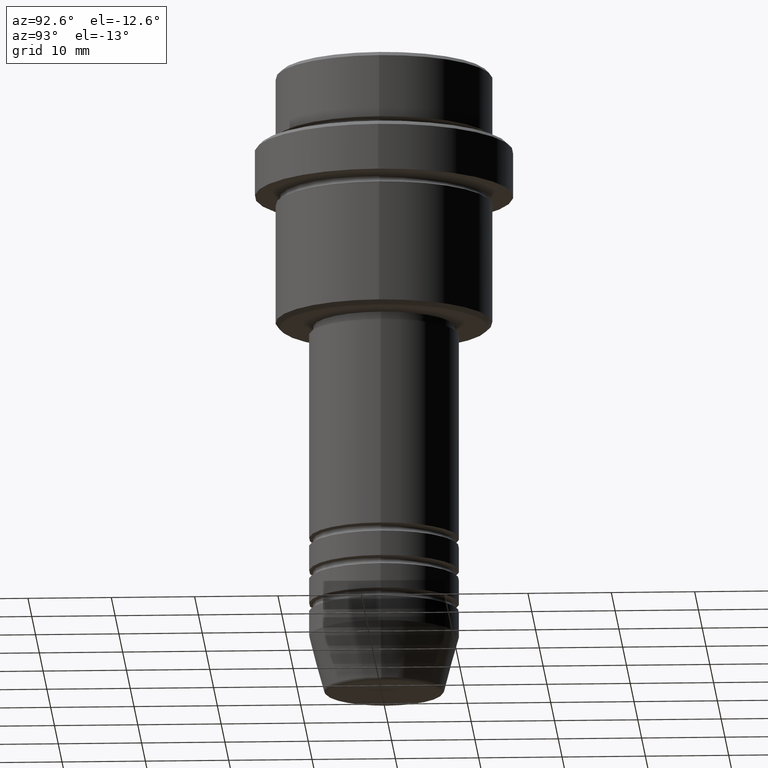
[diagram: clean part render]
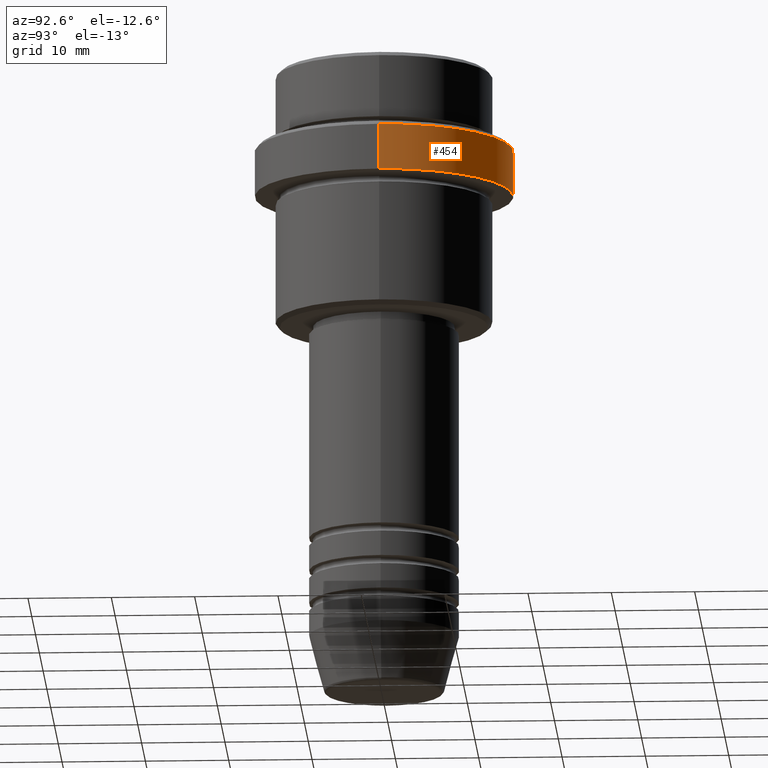
[diagram: same view with one face highlighted and labeled with its STEP entity id]
A machine part, auxiliary view. The second image highlights one B-rep face of the part: STEP entity #454.
In plain terms, the highlighted cylindrical surface (partial cylindrical patch) has radius 15.5 mm, axis along (-0, -0, 1).
Its self-contained STEP definition (entity closure, byte-faithful):
#67 = DIRECTION ( 'NONE',  ( 0.000000000000000000, 0.000000000000000000, -1.000000000000000000 ) ) ;
#88 = DIRECTION ( 'NONE',  ( 1.000000000000000000, 0.000000000000000000, 0.000000000000000000 ) ) ;
#103 = CYLINDRICAL_SURFACE ( 'NONE', #559, 15.50000000000000000 ) ;
#109 = VERTEX_POINT ( 'NONE', #1121 ) ;
#150 = VERTEX_POINT ( 'NONE', #1321 ) ;
#170 = FACE_OUTER_BOUND ( 'NONE', #1069, .T. ) ;
#188 = DIRECTION ( 'NONE',  ( 1.000000000000000000, 0.000000000000000000, 0.000000000000000000 ) ) ;
#297 = CARTESIAN_POINT ( 'NONE',  ( 0.000000000000000000, 0.000000000000000000, 0.000000000000000000 ) ) ;
#311 = LINE ( 'NONE', #1011, #1390 ) ;
#415 = LINE ( 'NONE', #1105, #1099 ) ;
#437 = DIRECTION ( 'NONE',  ( -0.000000000000000000, -0.000000000000000000, 1.000000000000000000 ) ) ;
#439 = AXIS2_PLACEMENT_3D ( 'NONE', #458, #617, #944 ) ;
#454 = ADVANCED_FACE ( 'NONE', ( #170 ), #103, .T. ) ;
#458 = CARTESIAN_POINT ( 'NONE',  ( 0.000000000000000000, 0.000000000000000000, -15.00000000000000000 ) ) ;
#501 = CARTESIAN_POINT ( 'NONE',  ( 0.000000000000000000, 0.000000000000000000, -9.500000000000026645 ) ) ;
#559 = AXIS2_PLACEMENT_3D ( 'NONE', #297, #1383, #88 ) ;
#597 = EDGE_CURVE ( 'NONE', #150, #769, #311, .T. ) ;
#617 = DIRECTION ( 'NONE',  ( -0.000000000000000000, -0.000000000000000000, 1.000000000000000000 ) ) ;
#750 = DIRECTION ( 'NONE',  ( -0.000000000000000000, -0.000000000000000000, 1.000000000000000000 ) ) ;
#769 = VERTEX_POINT ( 'NONE', #1016 ) ;
#880 = CIRCLE ( 'NONE', #1249, 15.50000000000000000 ) ;
#920 = ORIENTED_EDGE ( 'NONE', *, *, #1385, .T. ) ;
#944 = DIRECTION ( 'NONE',  ( 1.000000000000000000, 0.000000000000000000, 0.000000000000000000 ) ) ;
#949 = VERTEX_POINT ( 'NONE', #965 ) ;
#965 = CARTESIAN_POINT ( 'NONE',  ( 15.50000000000000000, 0.000000000000000000, -15.00000000000000000 ) ) ;
#1005 = ORIENTED_EDGE ( 'NONE', *, *, #597, .T. ) ;
#1011 = CARTESIAN_POINT ( 'NONE',  ( -15.50000000000000000, 1.898202538678397557E-15, 0.000000000000000000 ) ) ;
#1016 = CARTESIAN_POINT ( 'NONE',  ( -15.50000000000000000, 1.898202538678397557E-15, -9.500000000000026645 ) ) ;
#1056 = EDGE_CURVE ( 'NONE', #949, #109, #415, .T. ) ;
#1069 = EDGE_LOOP ( 'NONE', ( #1140, #1005, #920, #1411 ) ) ;
#1099 = VECTOR ( 'NONE', #437, 1000.000000000000000 ) ;
#1105 = CARTESIAN_POINT ( 'NONE',  ( 15.50000000000000000, 0.000000000000000000, 0.000000000000000000 ) ) ;
#1121 = CARTESIAN_POINT ( 'NONE',  ( 15.50000000000000000, 0.000000000000000000, -9.500000000000026645 ) ) ;
#1140 = ORIENTED_EDGE ( 'NONE', *, *, #1327, .T. ) ;
#1143 = CIRCLE ( 'NONE', #439, 15.50000000000000000 ) ;
#1249 = AXIS2_PLACEMENT_3D ( 'NONE', #501, #67, #188 ) ;
#1321 = CARTESIAN_POINT ( 'NONE',  ( -15.50000000000000000, 1.898202538678397557E-15, -15.00000000000000000 ) ) ;
#1327 = EDGE_CURVE ( 'NONE', #949, #150, #1143, .T. ) ;
#1383 = DIRECTION ( 'NONE',  ( -0.000000000000000000, -0.000000000000000000, 1.000000000000000000 ) ) ;
#1385 = EDGE_CURVE ( 'NONE', #769, #109, #880, .T. ) ;
#1390 = VECTOR ( 'NONE', #750, 1000.000000000000000 ) ;
#1411 = ORIENTED_EDGE ( 'NONE', *, *, #1056, .F. ) ;